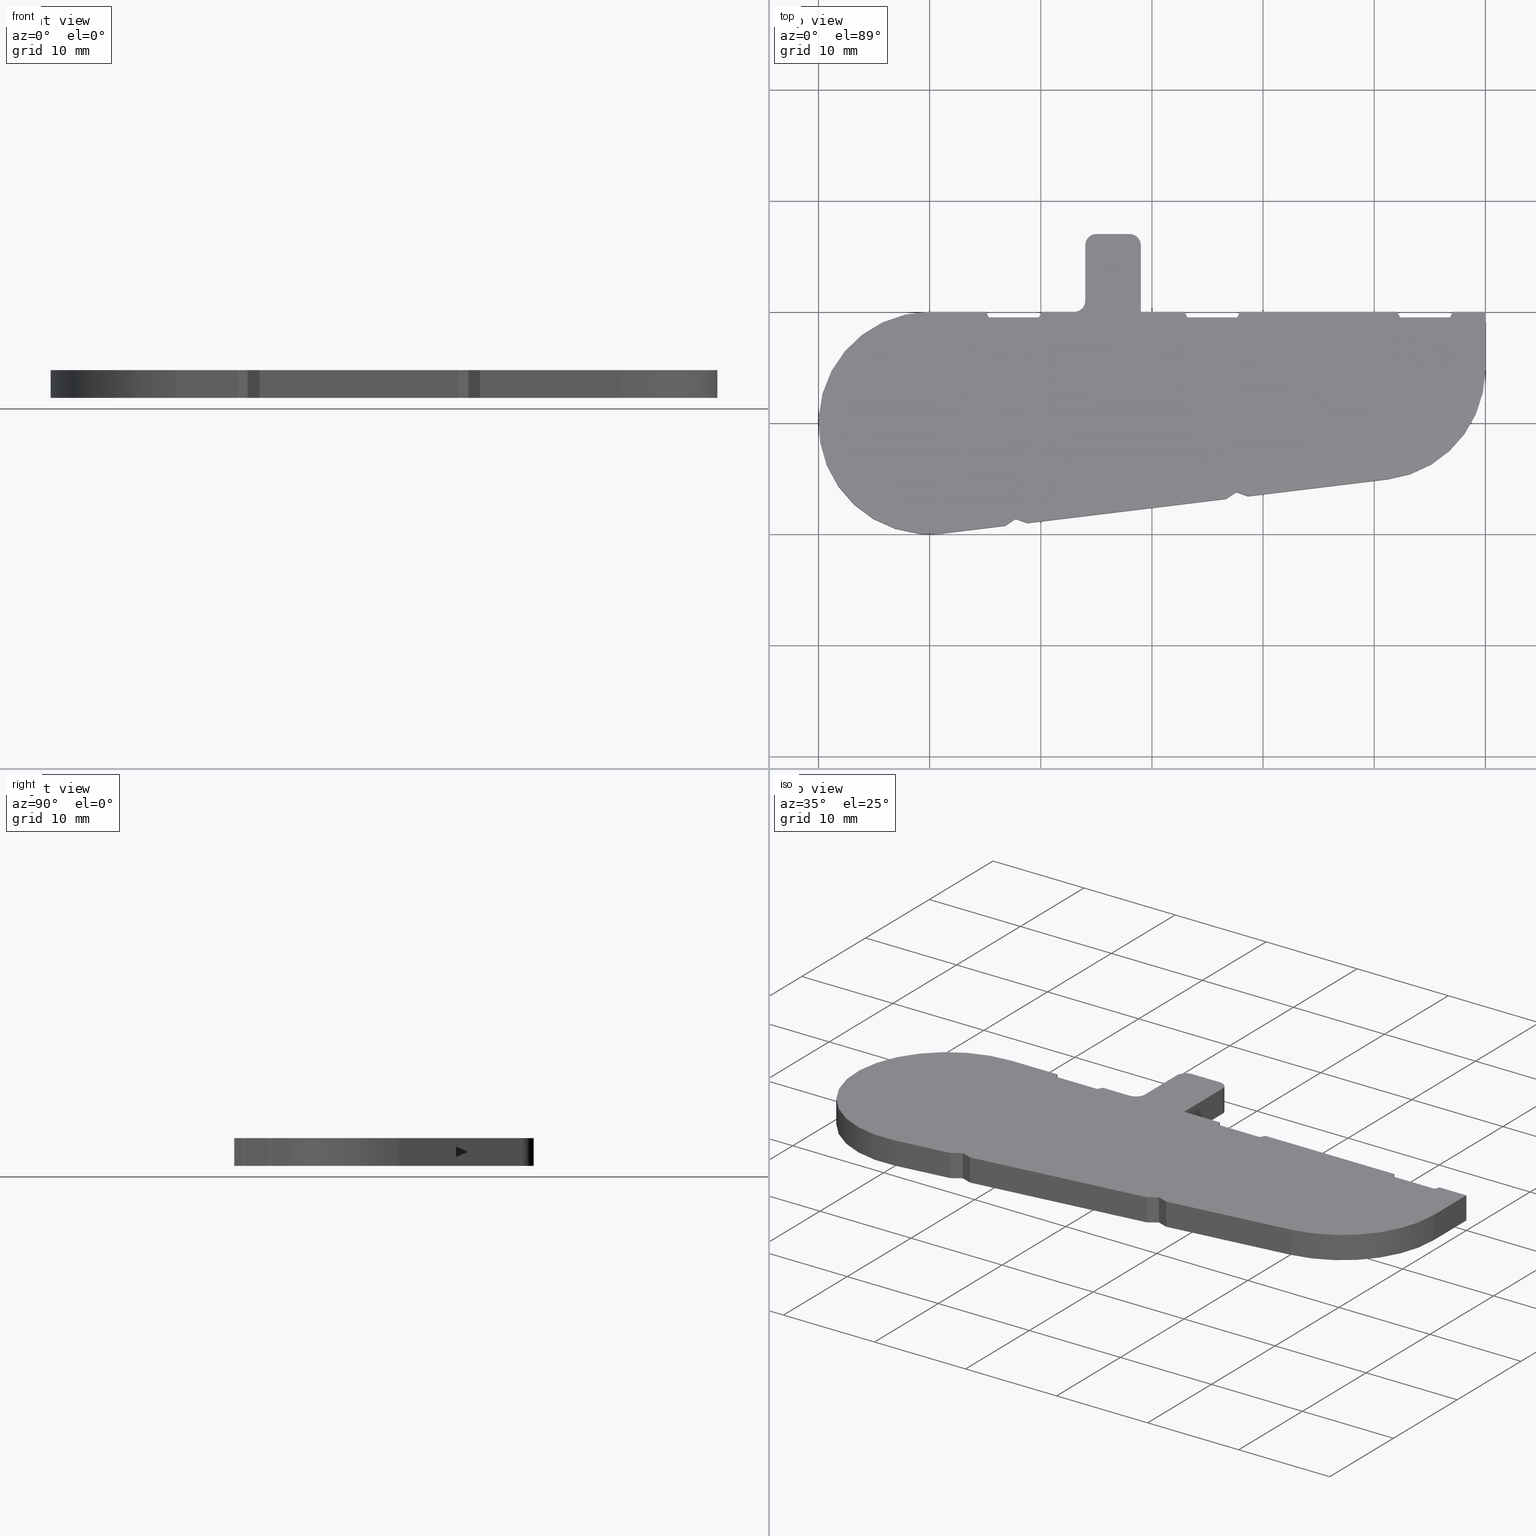
[diagram: canonical four-view strip — front | top / right | iso, engineering-drawing reading convention]
A machine part, canonical four-view strip (front | top / right | iso — engineering-drawing reading convention). The complete STEP part file that produces these views, byte-faithful:
ISO-10303-21;
HEADER;
/****************************************************************
 * Generated by software with PDE/Lib inside                    *
 * PDElib Version v4.4, created Mon 02/23/2004                  *
 * International Technegroup Inc. (www.iti-oh.com)              *
 ****************************************************************/
FILE_DESCRIPTION(('STEP AP203'),'2;1');
FILE_NAME('70CO00011.stp','2011-06-06T18:24:14',(''),(''),'2009.3.110','THINKDESIGN','');
FILE_SCHEMA(('CONFIG_CONTROL_DESIGN'));
ENDSEC;
DATA;
#2=CARTESIAN_POINT('',(46.824999561297545,9.500002191171006,0.0));
#3=DIRECTION('',(-0.000000046794917,0.999999999999999,0.0));
#4=DIRECTION('',(-0.999999999999999,-0.000000046794917,0.0));
#5=AXIS2_PLACEMENT_3D('',#2,#3,#4);
#6=PLANE('',#5);
#7=CARTESIAN_POINT('',(46.824999561297545,9.500002191171006,0.0));
#8=VERTEX_POINT('',#7);
#9=CARTESIAN_POINT('',(42.324999561297545,9.500001980593879,0.0));
#10=VERTEX_POINT('',#9);
#11=CARTESIAN_POINT('',(46.824999561297545,9.500002191171006,0.0));
#12=DIRECTION('',(-0.999999999999999,-0.000000046794917,0.0));
#13=VECTOR('',#12,4.500000000000004);
#14=LINE('',#11,#13);
#15=EDGE_CURVE('',#8,#10,#14,.T.);
#16=ORIENTED_EDGE('',*,*,#15,.T.);
#17=CARTESIAN_POINT('',(42.324999561297545,9.500001980593879,2.500000000000000));
#18=VERTEX_POINT('',#17);
#19=CARTESIAN_POINT('',(42.324999561297545,9.500001980593879,0.0));
#20=DIRECTION('',(0.0,0.0,1.0));
#21=VECTOR('',#20,2.500000000000000);
#22=LINE('',#19,#21);
#23=EDGE_CURVE('',#10,#18,#22,.T.);
#24=ORIENTED_EDGE('',*,*,#23,.T.);
#25=CARTESIAN_POINT('',(46.824999561297545,9.500002191171006,2.500000000000000));
#26=VERTEX_POINT('',#25);
#27=CARTESIAN_POINT('',(46.824999561297545,9.500002191171006,2.500000000000000));
#28=DIRECTION('',(-0.999999999999999,-0.000000046794917,0.0));
#29=VECTOR('',#28,4.500000000000004);
#30=LINE('',#27,#29);
#31=EDGE_CURVE('',#26,#18,#30,.T.);
#32=ORIENTED_EDGE('',*,*,#31,.F.);
#33=CARTESIAN_POINT('',(46.824999561297545,9.500002191171006,0.0));
#34=DIRECTION('',(0.0,0.0,1.0));
#35=VECTOR('',#34,2.500000000000000);
#36=LINE('',#33,#35);
#37=EDGE_CURVE('',#8,#26,#36,.T.);
#38=ORIENTED_EDGE('',*,*,#37,.F.);
#39=EDGE_LOOP('',(#16,#24,#32,#38));
#40=FACE_OUTER_BOUND('',#39,.T.);
#41=ADVANCED_FACE('',(#40),#6,.T.);
#42=CARTESIAN_POINT('',(42.324999561297545,9.500001980593879,0.0));
#43=DIRECTION('',(0.894427170072899,0.447213637353989,0.0));
#44=DIRECTION('',(-0.447213637353989,0.894427170072899,0.0));
#45=AXIS2_PLACEMENT_3D('',#42,#43,#44);
#46=PLANE('',#45);
#47=CARTESIAN_POINT('',(42.074999537900112,10.000001968895958,0.0));
#48=VERTEX_POINT('',#47);
#49=CARTESIAN_POINT('',(42.324999561297545,9.500001980593879,0.0));
#50=DIRECTION('',(-0.447213637353989,0.894427170072899,0.0));
#51=VECTOR('',#50,0.559016994375660);
#52=LINE('',#49,#51);
#53=EDGE_CURVE('',#10,#48,#52,.T.);
#54=ORIENTED_EDGE('',*,*,#53,.T.);
#55=CARTESIAN_POINT('',(42.074999537900112,10.000001968895958,2.500000000000000));
#56=VERTEX_POINT('',#55);
#57=CARTESIAN_POINT('',(42.074999537900112,10.000001968895958,0.0));
#58=DIRECTION('',(0.0,0.0,1.0));
#59=VECTOR('',#58,2.500000000000000);
#60=LINE('',#57,#59);
#61=EDGE_CURVE('',#48,#56,#60,.T.);
#62=ORIENTED_EDGE('',*,*,#61,.T.);
#63=CARTESIAN_POINT('',(42.324999561297545,9.500001980593879,2.500000000000000));
#64=DIRECTION('',(-0.447213637353989,0.894427170072899,0.0));
#65=VECTOR('',#64,0.559016994375660);
#66=LINE('',#63,#65);
#67=EDGE_CURVE('',#18,#56,#66,.T.);
#68=ORIENTED_EDGE('',*,*,#67,.F.);
#69=ORIENTED_EDGE('',*,*,#23,.F.);
#70=EDGE_LOOP('',(#54,#62,#68,#69));
#71=FACE_OUTER_BOUND('',#70,.T.);
#72=ADVANCED_FACE('',(#71),#46,.T.);
#73=CARTESIAN_POINT('',(42.074999537900112,10.000001968895958,0.0));
#74=DIRECTION('',(-0.000000046794949,0.999999999999999,0.0));
#75=DIRECTION('',(-0.999999999999999,-0.000000046794949,0.0));
#76=AXIS2_PLACEMENT_3D('',#73,#74,#75);
#77=PLANE('',#76);
#78=CARTESIAN_POINT('',(27.924999526201645,10.000001306747436,0.0));
#79=VERTEX_POINT('',#78);
#80=CARTESIAN_POINT('',(42.074999537900112,10.000001968895930,0.0));
#81=DIRECTION('',(-0.999999999999999,-0.000000046794947,0.0));
#82=VECTOR('',#81,14.150000011698483);
#83=LINE('',#80,#82);
#84=EDGE_CURVE('',#48,#79,#83,.T.);
#85=ORIENTED_EDGE('',*,*,#84,.T.);
#86=CARTESIAN_POINT('',(27.924999526201645,10.000001306747436,2.500000000000000));
#87=VERTEX_POINT('',#86);
#88=CARTESIAN_POINT('',(27.924999526201645,10.000001306747436,0.0));
#89=DIRECTION('',(0.0,0.0,1.0));
#90=VECTOR('',#89,2.500000000000000);
#91=LINE('',#88,#90);
#92=EDGE_CURVE('',#79,#87,#91,.T.);
#93=ORIENTED_EDGE('',*,*,#92,.T.);
#94=CARTESIAN_POINT('',(42.074999537900112,10.000001968895930,2.500000000000000));
#95=DIRECTION('',(-0.999999999999999,-0.000000046794947,0.0));
#96=VECTOR('',#95,14.150000011698483);
#97=LINE('',#94,#96);
#98=EDGE_CURVE('',#56,#87,#97,.T.);
#99=ORIENTED_EDGE('',*,*,#98,.F.);
#100=ORIENTED_EDGE('',*,*,#61,.F.);
#101=EDGE_LOOP('',(#85,#93,#99,#100));
#102=FACE_OUTER_BOUND('',#101,.T.);
#103=ADVANCED_FACE('',(#102),#77,.T.);
#104=CARTESIAN_POINT('',(27.924999526201645,10.000001306747436,0.0));
#105=DIRECTION('',(-0.894427211927175,0.447213553645438,0.0));
#106=DIRECTION('',(-0.447213553645438,-0.894427211927175,0.0));
#107=AXIS2_PLACEMENT_3D('',#104,#105,#106);
#108=PLANE('',#107);
#109=CARTESIAN_POINT('',(27.674999549599079,9.500001295048833,0.0));
#110=VERTEX_POINT('',#109);
#111=CARTESIAN_POINT('',(27.924999526201645,10.000001306747436,0.0));
#112=DIRECTION('',(-0.447213553645438,-0.894427211927175,0.0));
#113=VECTOR('',#112,0.559016994374846);
#114=LINE('',#111,#113);
#115=EDGE_CURVE('',#79,#110,#114,.T.);
#116=ORIENTED_EDGE('',*,*,#115,.T.);
#117=CARTESIAN_POINT('',(27.674999549599079,9.500001295048833,2.500000000000000));
#118=VERTEX_POINT('',#117);
#119=CARTESIAN_POINT('',(27.674999549599079,9.500001295048833,0.0));
#120=DIRECTION('',(0.0,0.0,1.0));
#121=VECTOR('',#120,2.500000000000000);
#122=LINE('',#119,#121);
#123=EDGE_CURVE('',#110,#118,#122,.T.);
#124=ORIENTED_EDGE('',*,*,#123,.T.);
#125=CARTESIAN_POINT('',(27.924999526201645,10.000001306747436,2.500000000000000));
#126=DIRECTION('',(-0.447213553645438,-0.894427211927175,0.0));
#127=VECTOR('',#126,0.559016994374846);
#128=LINE('',#125,#127);
#129=EDGE_CURVE('',#87,#118,#128,.T.);
#130=ORIENTED_EDGE('',*,*,#129,.F.);
#131=ORIENTED_EDGE('',*,*,#92,.F.);
#132=EDGE_LOOP('',(#116,#124,#130,#131));
#133=FACE_OUTER_BOUND('',#132,.T.);
#134=ADVANCED_FACE('',(#133),#108,.T.);
#135=CARTESIAN_POINT('',(27.674999549599079,9.500001295048833,0.0));
#136=DIRECTION('',(-0.000000046794917,0.999999999999999,0.0));
#137=DIRECTION('',(-0.999999999999999,-0.000000046794917,0.0));
#138=AXIS2_PLACEMENT_3D('',#135,#136,#137);
#139=PLANE('',#138);
#140=CARTESIAN_POINT('',(23.174999549599079,9.500001084471705,0.0));
#141=VERTEX_POINT('',#140);
#142=CARTESIAN_POINT('',(27.674999549599079,9.500001295048833,0.0));
#143=DIRECTION('',(-0.999999999999999,-0.000000046794917,0.0));
#144=VECTOR('',#143,4.500000000000004);
#145=LINE('',#142,#144);
#146=EDGE_CURVE('',#110,#141,#145,.T.);
#147=ORIENTED_EDGE('',*,*,#146,.T.);
#148=CARTESIAN_POINT('',(23.174999549599079,9.500001084471705,2.500000000000000));
#149=VERTEX_POINT('',#148);
#150=CARTESIAN_POINT('',(23.174999549599079,9.500001084471705,0.0));
#151=DIRECTION('',(0.0,0.0,1.0));
#152=VECTOR('',#151,2.500000000000000);
#153=LINE('',#150,#152);
#154=EDGE_CURVE('',#141,#149,#153,.T.);
#155=ORIENTED_EDGE('',*,*,#154,.T.);
#156=CARTESIAN_POINT('',(27.674999549599079,9.500001295048833,2.500000000000000));
#157=DIRECTION('',(-0.999999999999999,-0.000000046794917,0.0));
#158=VECTOR('',#157,4.500000000000004);
#159=LINE('',#156,#158);
#160=EDGE_CURVE('',#118,#149,#159,.T.);
#161=ORIENTED_EDGE('',*,*,#160,.F.);
#162=ORIENTED_EDGE('',*,*,#123,.F.);
#163=EDGE_LOOP('',(#147,#155,#161,#162));
#164=FACE_OUTER_BOUND('',#163,.T.);
#165=ADVANCED_FACE('',(#164),#139,.T.);
#166=CARTESIAN_POINT('',(23.174999549599079,9.500001084471705,0.0));
#167=DIRECTION('',(0.894427170072574,0.447213637354640,0.0));
#168=DIRECTION('',(-0.447213637354640,0.894427170072574,0.0));
#169=AXIS2_PLACEMENT_3D('',#166,#167,#168);
#170=PLANE('',#169);
#171=CARTESIAN_POINT('',(22.924999526201645,10.000001072772875,0.0));
#172=VERTEX_POINT('',#171);
#173=CARTESIAN_POINT('',(23.174999549599079,9.500001084471705,0.0));
#174=DIRECTION('',(-0.447213637354640,0.894427170072574,0.0));
#175=VECTOR('',#174,0.559016994374846);
#176=LINE('',#173,#175);
#177=EDGE_CURVE('',#141,#172,#176,.T.);
#178=ORIENTED_EDGE('',*,*,#177,.T.);
#179=CARTESIAN_POINT('',(22.924999526201645,10.000001072772875,2.500000000000000));
#180=VERTEX_POINT('',#179);
#181=CARTESIAN_POINT('',(22.924999526201645,10.000001072772875,0.0));
#182=DIRECTION('',(0.0,0.0,1.0));
#183=VECTOR('',#182,2.500000000000000);
#184=LINE('',#181,#183);
#185=EDGE_CURVE('',#172,#180,#184,.T.);
#186=ORIENTED_EDGE('',*,*,#185,.T.);
#187=CARTESIAN_POINT('',(23.174999549599079,9.500001084471705,2.500000000000000));
#188=DIRECTION('',(-0.447213637354640,0.894427170072574,0.0));
#189=VECTOR('',#188,0.559016994374846);
#190=LINE('',#187,#189);
#191=EDGE_CURVE('',#149,#180,#190,.T.);
#192=ORIENTED_EDGE('',*,*,#191,.F.);
#193=ORIENTED_EDGE('',*,*,#154,.F.);
#194=EDGE_LOOP('',(#178,#186,#192,#193));
#195=FACE_OUTER_BOUND('',#194,.T.);
#196=ADVANCED_FACE('',(#195),#170,.T.);
#197=CARTESIAN_POINT('',(22.924999526201645,10.000001072772875,0.0));
#198=DIRECTION('',(-0.000000046794893,0.999999999999999,0.0));
#199=DIRECTION('',(-0.999999999999999,-0.000000046794893,0.0));
#200=AXIS2_PLACEMENT_3D('',#197,#198,#199);
#201=PLANE('',#200);
#202=CARTESIAN_POINT('',(18.999999532050879,10.000000889102921,0.0));
#203=VERTEX_POINT('',#202);
#204=CARTESIAN_POINT('',(22.924999526201645,10.000001072772875,0.0));
#205=DIRECTION('',(-0.999999999999999,-0.000000046794893,0.0));
#206=VECTOR('',#205,3.924999994150771);
#207=LINE('',#204,#206);
#208=EDGE_CURVE('',#172,#203,#207,.T.);
#209=ORIENTED_EDGE('',*,*,#208,.T.);
#210=CARTESIAN_POINT('',(18.999999532050879,10.000000889102921,2.500000000000000));
#211=VERTEX_POINT('',#210);
#212=CARTESIAN_POINT('',(18.999999532050879,10.000000889102921,0.0));
#213=DIRECTION('',(0.0,0.0,1.0));
#214=VECTOR('',#213,2.500000000000000);
#215=LINE('',#212,#214);
#216=EDGE_CURVE('',#203,#211,#215,.T.);
#217=ORIENTED_EDGE('',*,*,#216,.T.);
#218=CARTESIAN_POINT('',(22.924999526201645,10.000001072772875,2.500000000000000));
#219=DIRECTION('',(-0.999999999999999,-0.000000046794893,0.0));
#220=VECTOR('',#219,3.924999994150771);
#221=LINE('',#218,#220);
#222=EDGE_CURVE('',#180,#211,#221,.T.);
#223=ORIENTED_EDGE('',*,*,#222,.F.);
#224=ORIENTED_EDGE('',*,*,#185,.F.);
#225=EDGE_LOOP('',(#209,#217,#223,#224));
#226=FACE_OUTER_BOUND('',#225,.T.);
#227=ADVANCED_FACE('',(#226),#201,.T.);
#228=CARTESIAN_POINT('',(18.999999532050879,10.000000889102921,0.0));
#229=DIRECTION('',(0.999999999999999,0.000000046794867,0.0));
#230=DIRECTION('',(-0.000000046794867,0.999999999999999,0.0));
#231=AXIS2_PLACEMENT_3D('',#228,#229,#230);
#232=PLANE('',#231);
#233=CARTESIAN_POINT('',(18.999999251281679,16.000000889102921,0.0));
#234=VERTEX_POINT('',#233);
#235=CARTESIAN_POINT('',(18.999999532050879,10.000000889102921,0.0));
#236=DIRECTION('',(-0.000000046794867,0.999999999999999,0.0));
#237=VECTOR('',#236,6.000000000000006);
#238=LINE('',#235,#237);
#239=EDGE_CURVE('',#203,#234,#238,.T.);
#240=ORIENTED_EDGE('',*,*,#239,.T.);
#241=CARTESIAN_POINT('',(18.999999251281679,16.000000889102921,2.500000000000000));
#242=VERTEX_POINT('',#241);
#243=CARTESIAN_POINT('',(18.999999251281679,16.000000889102921,0.0));
#244=DIRECTION('',(0.0,0.0,1.0));
#245=VECTOR('',#244,2.500000000000000);
#246=LINE('',#243,#245);
#247=EDGE_CURVE('',#234,#242,#246,.T.);
#248=ORIENTED_EDGE('',*,*,#247,.T.);
#249=CARTESIAN_POINT('',(18.999999532050879,10.000000889102921,2.500000000000000));
#250=DIRECTION('',(-0.000000046794867,0.999999999999999,0.0));
#251=VECTOR('',#250,6.000000000000006);
#252=LINE('',#249,#251);
#253=EDGE_CURVE('',#211,#242,#252,.T.);
#254=ORIENTED_EDGE('',*,*,#253,.F.);
#255=ORIENTED_EDGE('',*,*,#216,.F.);
#256=EDGE_LOOP('',(#240,#248,#254,#255));
#257=FACE_OUTER_BOUND('',#256,.T.);
#258=ADVANCED_FACE('',(#257),#232,.T.);
#259=CARTESIAN_POINT('',(17.999999251281679,16.000000842308054,0.0));
#260=DIRECTION('',(0.0,0.0,1.0));
#261=DIRECTION('',(1.0,0.0,0.0));
#262=AXIS2_PLACEMENT_3D('',#259,#260,#261);
#263=CYLINDRICAL_SURFACE('',#262,1.0);
#264=CARTESIAN_POINT('',(17.999999204486585,17.000000842308054,0.0));
#265=VERTEX_POINT('',#264);
#266=CARTESIAN_POINT('',(17.999999251281679,16.000000842308054,0.0));
#267=DIRECTION('',(0.0,0.0,1.0));
#268=DIRECTION('',(1.0,0.0,0.0));
#269=AXIS2_PLACEMENT_3D('',#266,#267,#268);
#270=CIRCLE('',#269,1.0);
#271=EDGE_CURVE('',#234,#265,#270,.T.);
#272=ORIENTED_EDGE('',*,*,#271,.T.);
#273=CARTESIAN_POINT('',(17.999999204486585,17.000000842308054,2.500000000000000));
#274=VERTEX_POINT('',#273);
#275=CARTESIAN_POINT('',(17.999999204486585,17.000000842308054,0.0));
#276=DIRECTION('',(0.0,0.0,1.0));
#277=VECTOR('',#276,2.500000000000000);
#278=LINE('',#275,#277);
#279=EDGE_CURVE('',#265,#274,#278,.T.);
#280=ORIENTED_EDGE('',*,*,#279,.T.);
#281=CARTESIAN_POINT('',(17.999999251281679,16.000000842308054,2.500000000000000));
#282=DIRECTION('',(0.0,0.0,1.0));
#283=DIRECTION('',(1.0,0.0,0.0));
#284=AXIS2_PLACEMENT_3D('',#281,#282,#283);
#285=CIRCLE('',#284,1.0);
#286=EDGE_CURVE('',#242,#274,#285,.T.);
#287=ORIENTED_EDGE('',*,*,#286,.F.);
#288=ORIENTED_EDGE('',*,*,#247,.F.);
#289=EDGE_LOOP('',(#272,#280,#287,#288));
#290=FACE_OUTER_BOUND('',#289,.T.);
#291=ADVANCED_FACE('',(#290),#263,.T.);
#292=CARTESIAN_POINT('',(17.999999204486585,17.000000842308054,0.0));
#293=DIRECTION('',(-0.000000046794867,0.999999999999999,0.0));
#294=DIRECTION('',(-0.999999999999999,-0.000000046794867,0.0));
#295=AXIS2_PLACEMENT_3D('',#292,#293,#294);
#296=PLANE('',#295);
#297=CARTESIAN_POINT('',(14.999999204486585,17.000000701923454,0.0));
#298=VERTEX_POINT('',#297);
#299=CARTESIAN_POINT('',(17.999999204486585,17.000000842308054,0.0));
#300=DIRECTION('',(-0.999999999999999,-0.000000046794867,0.0));
#301=VECTOR('',#300,3.000000000000003);
#302=LINE('',#299,#301);
#303=EDGE_CURVE('',#265,#298,#302,.T.);
#304=ORIENTED_EDGE('',*,*,#303,.T.);
#305=CARTESIAN_POINT('',(14.999999204486585,17.000000701923454,2.500000000000000));
#306=VERTEX_POINT('',#305);
#307=CARTESIAN_POINT('',(14.999999204486585,17.000000701923454,0.0));
#308=DIRECTION('',(0.0,0.0,1.0));
#309=VECTOR('',#308,2.500000000000000);
#310=LINE('',#307,#309);
#311=EDGE_CURVE('',#298,#306,#310,.T.);
#312=ORIENTED_EDGE('',*,*,#311,.T.);
#313=CARTESIAN_POINT('',(17.999999204486585,17.000000842308054,2.500000000000000));
#314=DIRECTION('',(-0.999999999999999,-0.000000046794867,0.0));
#315=VECTOR('',#314,3.000000000000003);
#316=LINE('',#313,#315);
#317=EDGE_CURVE('',#274,#306,#316,.T.);
#318=ORIENTED_EDGE('',*,*,#317,.F.);
#319=ORIENTED_EDGE('',*,*,#279,.F.);
#320=EDGE_LOOP('',(#304,#312,#318,#319));
#321=FACE_OUTER_BOUND('',#320,.T.);
#322=ADVANCED_FACE('',(#321),#296,.T.);
#323=CARTESIAN_POINT('',(14.999999251281679,16.000000701923454,0.0));
#324=DIRECTION('',(0.0,0.0,1.0));
#325=DIRECTION('',(1.0,0.0,0.0));
#326=AXIS2_PLACEMENT_3D('',#323,#324,#325);
#327=CYLINDRICAL_SURFACE('',#326,1.0);
#328=CARTESIAN_POINT('',(13.999999251281679,16.000000655128588,0.0));
#329=VERTEX_POINT('',#328);
#330=CARTESIAN_POINT('',(14.999999251281679,16.000000701923454,0.0));
#331=DIRECTION('',(0.0,0.0,1.0));
#332=DIRECTION('',(1.0,0.0,0.0));
#333=AXIS2_PLACEMENT_3D('',#330,#331,#332);
#334=CIRCLE('',#333,1.0);
#335=EDGE_CURVE('',#298,#329,#334,.T.);
#336=ORIENTED_EDGE('',*,*,#335,.T.);
#337=CARTESIAN_POINT('',(13.999999251281679,16.000000655128588,2.500000000000000));
#338=VERTEX_POINT('',#337);
#339=CARTESIAN_POINT('',(13.999999251281679,16.000000655128588,0.0));
#340=DIRECTION('',(0.0,0.0,1.0));
#341=VECTOR('',#340,2.500000000000000);
#342=LINE('',#339,#341);
#343=EDGE_CURVE('',#329,#338,#342,.T.);
#344=ORIENTED_EDGE('',*,*,#343,.T.);
#345=CARTESIAN_POINT('',(14.999999251281679,16.000000701923454,2.500000000000000));
#346=DIRECTION('',(0.0,0.0,1.0));
#347=DIRECTION('',(1.0,0.0,0.0));
#348=AXIS2_PLACEMENT_3D('',#345,#346,#347);
#349=CIRCLE('',#348,1.0);
#350=EDGE_CURVE('',#306,#338,#349,.T.);
#351=ORIENTED_EDGE('',*,*,#350,.F.);
#352=ORIENTED_EDGE('',*,*,#311,.F.);
#353=EDGE_LOOP('',(#336,#344,#351,#352));
#354=FACE_OUTER_BOUND('',#353,.T.);
#355=ADVANCED_FACE('',(#354),#327,.T.);
#356=CARTESIAN_POINT('',(13.999999251281679,16.000000655128588,0.0));
#357=DIRECTION('',(-0.999999999999999,-0.000000046794867,0.0));
#358=DIRECTION('',(0.000000046794867,-0.999999999999999,0.0));
#359=AXIS2_PLACEMENT_3D('',#356,#357,#358);
#360=PLANE('',#359);
#361=CARTESIAN_POINT('',(13.999999485256012,11.000000655128588,0.0));
#362=VERTEX_POINT('',#361);
#363=CARTESIAN_POINT('',(13.999999251281679,16.000000655128588,0.0));
#364=DIRECTION('',(0.000000046794867,-0.999999999999999,0.0));
#365=VECTOR('',#364,5.000000000000005);
#366=LINE('',#363,#365);
#367=EDGE_CURVE('',#329,#362,#366,.T.);
#368=ORIENTED_EDGE('',*,*,#367,.T.);
#369=CARTESIAN_POINT('',(13.999999485256012,11.000000655128588,2.500000000000000));
#370=VERTEX_POINT('',#369);
#371=CARTESIAN_POINT('',(13.999999485256012,11.000000655128588,0.0));
#372=DIRECTION('',(0.0,0.0,1.0));
#373=VECTOR('',#372,2.500000000000000);
#374=LINE('',#371,#373);
#375=EDGE_CURVE('',#362,#370,#374,.T.);
#376=ORIENTED_EDGE('',*,*,#375,.T.);
#377=CARTESIAN_POINT('',(13.999999251281679,16.000000655128588,2.500000000000000));
#378=DIRECTION('',(0.000000046794867,-0.999999999999999,0.0));
#379=VECTOR('',#378,5.000000000000005);
#380=LINE('',#377,#379);
#381=EDGE_CURVE('',#338,#370,#380,.T.);
#382=ORIENTED_EDGE('',*,*,#381,.F.);
#383=ORIENTED_EDGE('',*,*,#343,.F.);
#384=EDGE_LOOP('',(#368,#376,#382,#383));
#385=FACE_OUTER_BOUND('',#384,.T.);
#386=ADVANCED_FACE('',(#385),#360,.T.);
#387=CARTESIAN_POINT('',(12.999999485256012,11.000000608333721,0.0));
#388=DIRECTION('',(0.0,0.0,-1.0));
#389=DIRECTION('',(0.999999999999999,0.000000046794867,0.0));
#390=AXIS2_PLACEMENT_3D('',#387,#388,#389);
#391=CYLINDRICAL_SURFACE('',#390,1.0);
#392=CARTESIAN_POINT('',(12.999999532050879,10.000000608333721,0.0));
#393=VERTEX_POINT('',#392);
#394=CARTESIAN_POINT('',(12.999999485256012,11.000000608333721,0.0));
#395=DIRECTION('',(0.0,0.0,-1.0));
#396=DIRECTION('',(1.0,0.0,0.0));
#397=AXIS2_PLACEMENT_3D('',#394,#395,#396);
#398=CIRCLE('',#397,1.0);
#399=EDGE_CURVE('',#362,#393,#398,.T.);
#400=ORIENTED_EDGE('',*,*,#399,.T.);
#401=CARTESIAN_POINT('',(12.999999532050879,10.000000608333721,2.500000000000000));
#402=VERTEX_POINT('',#401);
#403=CARTESIAN_POINT('',(12.999999532050879,10.000000608333721,0.0));
#404=DIRECTION('',(0.0,0.0,1.0));
#405=VECTOR('',#404,2.500000000000000);
#406=LINE('',#403,#405);
#407=EDGE_CURVE('',#393,#402,#406,.T.);
#408=ORIENTED_EDGE('',*,*,#407,.T.);
#409=CARTESIAN_POINT('',(12.999999485256012,11.000000608333721,2.500000000000000));
#410=DIRECTION('',(0.0,0.0,-1.0));
#411=DIRECTION('',(1.0,0.0,0.0));
#412=AXIS2_PLACEMENT_3D('',#409,#410,#411);
#413=CIRCLE('',#412,1.0);
#414=EDGE_CURVE('',#370,#402,#413,.T.);
#415=ORIENTED_EDGE('',*,*,#414,.F.);
#416=ORIENTED_EDGE('',*,*,#375,.F.);
#417=EDGE_LOOP('',(#400,#408,#415,#416));
#418=FACE_OUTER_BOUND('',#417,.T.);
#419=ADVANCED_FACE('',(#418),#391,.F.);
#420=CARTESIAN_POINT('',(12.999999532050879,10.000000608333721,0.0));
#421=DIRECTION('',(-0.000000046794902,0.999999999999999,0.0));
#422=DIRECTION('',(-0.999999999999999,-0.000000046794902,0.0));
#423=AXIS2_PLACEMENT_3D('',#420,#421,#422);
#424=PLANE('',#423);
#425=CARTESIAN_POINT('',(10.074999537900339,10.000000471458634,0.0));
#426=VERTEX_POINT('',#425);
#427=CARTESIAN_POINT('',(12.999999532050879,10.000000608333721,0.0));
#428=DIRECTION('',(-0.999999999999999,-0.000000046794902,0.0));
#429=VECTOR('',#428,2.924999994150543);
#430=LINE('',#427,#429);
#431=EDGE_CURVE('',#393,#426,#430,.T.);
#432=ORIENTED_EDGE('',*,*,#431,.T.);
#433=CARTESIAN_POINT('',(10.074999537900339,10.000000471458634,2.500000000000000));
#434=VERTEX_POINT('',#433);
#435=CARTESIAN_POINT('',(10.074999537900339,10.000000471458634,0.0));
#436=DIRECTION('',(0.0,0.0,1.0));
#437=VECTOR('',#436,2.500000000000000);
#438=LINE('',#435,#437);
#439=EDGE_CURVE('',#426,#434,#438,.T.);
#440=ORIENTED_EDGE('',*,*,#439,.T.);
#441=CARTESIAN_POINT('',(12.999999532050879,10.000000608333721,2.500000000000000));
#442=DIRECTION('',(-0.999999999999999,-0.000000046794902,0.0));
#443=VECTOR('',#442,2.924999994150543);
#444=LINE('',#441,#443);
#445=EDGE_CURVE('',#402,#434,#444,.T.);
#446=ORIENTED_EDGE('',*,*,#445,.F.);
#447=ORIENTED_EDGE('',*,*,#407,.F.);
#448=EDGE_LOOP('',(#432,#440,#446,#447));
#449=FACE_OUTER_BOUND('',#448,.T.);
#450=ADVANCED_FACE('',(#449),#424,.T.);
#451=CARTESIAN_POINT('',(10.074999537900339,10.000000471458634,0.0));
#452=DIRECTION('',(-0.894427211927256,0.447213553645275,0.0));
#453=DIRECTION('',(-0.447213553645275,-0.894427211927256,0.0));
#454=AXIS2_PLACEMENT_3D('',#451,#452,#453);
#455=PLANE('',#454);
#456=CARTESIAN_POINT('',(9.824999561297773,9.500000459759804,0.0));
#457=VERTEX_POINT('',#456);
#458=CARTESIAN_POINT('',(10.074999537900339,10.000000471458634,0.0));
#459=DIRECTION('',(-0.447213553645275,-0.894427211927256,0.0));
#460=VECTOR('',#459,0.559016994375050);
#461=LINE('',#458,#460);
#462=EDGE_CURVE('',#426,#457,#461,.T.);
#463=ORIENTED_EDGE('',*,*,#462,.T.);
#464=CARTESIAN_POINT('',(9.824999561297773,9.500000459759804,2.500000000000000));
#465=VERTEX_POINT('',#464);
#466=CARTESIAN_POINT('',(9.824999561297773,9.500000459759804,0.0));
#467=DIRECTION('',(0.0,0.0,1.0));
#468=VECTOR('',#467,2.500000000000000);
#469=LINE('',#466,#468);
#470=EDGE_CURVE('',#457,#465,#469,.T.);
#471=ORIENTED_EDGE('',*,*,#470,.T.);
#472=CARTESIAN_POINT('',(10.074999537900339,10.000000471458634,2.500000000000000));
#473=DIRECTION('',(-0.447213553645275,-0.894427211927256,0.0));
#474=VECTOR('',#473,0.559016994375050);
#475=LINE('',#472,#474);
#476=EDGE_CURVE('',#434,#465,#475,.T.);
#477=ORIENTED_EDGE('',*,*,#476,.F.);
#478=ORIENTED_EDGE('',*,*,#439,.F.);
#479=EDGE_LOOP('',(#463,#471,#477,#478));
#480=FACE_OUTER_BOUND('',#479,.T.);
#481=ADVANCED_FACE('',(#480),#455,.T.);
#482=CARTESIAN_POINT('',(9.824999561297773,9.500000459759804,0.0));
#483=DIRECTION('',(-0.000000046794867,0.999999999999999,0.0));
#484=DIRECTION('',(-0.999999999999999,-0.000000046794867,0.0));
#485=AXIS2_PLACEMENT_3D('',#482,#483,#484);
#486=PLANE('',#485);
#487=CARTESIAN_POINT('',(5.324999561297773,9.500000249182904,0.0));
#488=VERTEX_POINT('',#487);
#489=CARTESIAN_POINT('',(9.824999561297773,9.500000459759804,0.0));
#490=DIRECTION('',(-0.999999999999999,-0.000000046794867,0.0));
#491=VECTOR('',#490,4.500000000000004);
#492=LINE('',#489,#491);
#493=EDGE_CURVE('',#457,#488,#492,.T.);
#494=ORIENTED_EDGE('',*,*,#493,.T.);
#495=CARTESIAN_POINT('',(5.324999561297773,9.500000249182904,2.500000000000000));
#496=VERTEX_POINT('',#495);
#497=CARTESIAN_POINT('',(5.324999561297773,9.500000249182904,0.0));
#498=DIRECTION('',(0.0,0.0,1.0));
#499=VECTOR('',#498,2.500000000000000);
#500=LINE('',#497,#499);
#501=EDGE_CURVE('',#488,#496,#500,.T.);
#502=ORIENTED_EDGE('',*,*,#501,.T.);
#503=CARTESIAN_POINT('',(9.824999561297773,9.500000459759804,2.500000000000000));
#504=DIRECTION('',(-0.999999999999999,-0.000000046794867,0.0));
#505=VECTOR('',#504,4.500000000000004);
#506=LINE('',#503,#505);
#507=EDGE_CURVE('',#465,#496,#506,.T.);
#508=ORIENTED_EDGE('',*,*,#507,.F.);
#509=ORIENTED_EDGE('',*,*,#470,.F.);
#510=EDGE_LOOP('',(#494,#502,#508,#509));
#511=FACE_OUTER_BOUND('',#510,.T.);
#512=ADVANCED_FACE('',(#511),#486,.T.);
#513=CARTESIAN_POINT('',(5.324999561297773,9.500000249182904,0.0));
#514=DIRECTION('',(0.894427170072574,0.447213637354640,0.0));
#515=DIRECTION('',(-0.447213637354640,0.894427170072574,0.0));
#516=AXIS2_PLACEMENT_3D('',#513,#514,#515);
#517=PLANE('',#516);
#518=CARTESIAN_POINT('',(5.074999537900339,10.000000237484073,0.0));
#519=VERTEX_POINT('',#518);
#520=CARTESIAN_POINT('',(5.324999561297773,9.500000249182904,0.0));
#521=DIRECTION('',(-0.447213637354640,0.894427170072574,0.0));
#522=VECTOR('',#521,0.559016994374846);
#523=LINE('',#520,#522);
#524=EDGE_CURVE('',#488,#519,#523,.T.);
#525=ORIENTED_EDGE('',*,*,#524,.T.);
#526=CARTESIAN_POINT('',(5.074999537900339,10.000000237484073,2.500000000000000));
#527=VERTEX_POINT('',#526);
#528=CARTESIAN_POINT('',(5.074999537900339,10.000000237484073,0.0));
#529=DIRECTION('',(0.0,0.0,1.0));
#530=VECTOR('',#529,2.500000000000000);
#531=LINE('',#528,#530);
#532=EDGE_CURVE('',#519,#527,#531,.T.);
#533=ORIENTED_EDGE('',*,*,#532,.T.);
#534=CARTESIAN_POINT('',(5.324999561297773,9.500000249182904,2.500000000000000));
#535=DIRECTION('',(-0.447213637354640,0.894427170072574,0.0));
#536=VECTOR('',#535,0.559016994374846);
#537=LINE('',#534,#536);
#538=EDGE_CURVE('',#496,#527,#537,.T.);
#539=ORIENTED_EDGE('',*,*,#538,.F.);
#540=ORIENTED_EDGE('',*,*,#501,.F.);
#541=EDGE_LOOP('',(#525,#533,#539,#540));
#542=FACE_OUTER_BOUND('',#541,.T.);
#543=ADVANCED_FACE('',(#542),#517,.T.);
#544=CARTESIAN_POINT('',(5.074999537900339,10.000000237484073,0.0));
#545=DIRECTION('',(-0.000000046794891,0.999999999999999,0.0));
#546=DIRECTION('',(-0.999999999999999,-0.000000046794891,0.0));
#547=AXIS2_PLACEMENT_3D('',#544,#545,#546);
#548=PLANE('',#547);
#549=CARTESIAN_POINT('',(-0.000000467949107,10.0,0.0));
#550=VERTEX_POINT('',#549);
#551=CARTESIAN_POINT('',(5.074999537900339,10.000000237484073,0.0));
#552=DIRECTION('',(-0.999999999999999,-0.000000046794891,0.0));
#553=VECTOR('',#552,5.075000005849466);
#554=LINE('',#551,#553);
#555=EDGE_CURVE('',#519,#550,#554,.T.);
#556=ORIENTED_EDGE('',*,*,#555,.T.);
#557=CARTESIAN_POINT('',(-0.000000467949107,10.0,2.500000000000000));
#558=VERTEX_POINT('',#557);
#559=CARTESIAN_POINT('',(-0.000000467949107,10.0,0.0));
#560=DIRECTION('',(0.0,0.0,1.0));
#561=VECTOR('',#560,2.500000000000000);
#562=LINE('',#559,#561);
#563=EDGE_CURVE('',#550,#558,#562,.T.);
#564=ORIENTED_EDGE('',*,*,#563,.T.);
#565=CARTESIAN_POINT('',(5.074999537900339,10.000000237484073,2.500000000000000));
#566=DIRECTION('',(-0.999999999999999,-0.000000046794891,0.0));
#567=VECTOR('',#566,5.075000005849466);
#568=LINE('',#565,#567);
#569=EDGE_CURVE('',#527,#558,#568,.T.);
#570=ORIENTED_EDGE('',*,*,#569,.F.);
#571=ORIENTED_EDGE('',*,*,#532,.F.);
#572=EDGE_LOOP('',(#556,#564,#570,#571));
#573=FACE_OUTER_BOUND('',#572,.T.);
#574=ADVANCED_FACE('',(#573),#548,.T.);
#575=CARTESIAN_POINT('',(0.0,0.0,0.0));
#576=DIRECTION('',(0.0,0.0,1.0));
#577=DIRECTION('',(1.0,0.0,0.0));
#578=AXIS2_PLACEMENT_3D('',#575,#576,#577);
#579=CYLINDRICAL_SURFACE('',#578,10.0);
#580=CARTESIAN_POINT('',(1.207414269662650,-9.926839919199665,0.0));
#581=VERTEX_POINT('',#580);
#582=CARTESIAN_POINT('',(0.0,0.0,0.0));
#583=DIRECTION('',(0.0,0.0,1.0));
#584=DIRECTION('',(1.0,0.0,0.0));
#585=AXIS2_PLACEMENT_3D('',#582,#583,#584);
#586=CIRCLE('',#585,10.0);
#587=EDGE_CURVE('',#550,#581,#586,.T.);
#588=ORIENTED_EDGE('',*,*,#587,.T.);
#589=CARTESIAN_POINT('',(1.207414269662650,-9.926839919199665,2.500000000000000));
#590=VERTEX_POINT('',#589);
#591=CARTESIAN_POINT('',(1.207414269662650,-9.926839919199665,0.0));
#592=DIRECTION('',(0.0,0.0,1.0));
#593=VECTOR('',#592,2.500000000000000);
#594=LINE('',#591,#593);
#595=EDGE_CURVE('',#581,#590,#594,.T.);
#596=ORIENTED_EDGE('',*,*,#595,.T.);
#597=CARTESIAN_POINT('',(0.0,0.0,2.500000000000000));
#598=DIRECTION('',(0.0,0.0,1.0));
#599=DIRECTION('',(1.0,0.0,0.0));
#600=AXIS2_PLACEMENT_3D('',#597,#598,#599);
#601=CIRCLE('',#600,10.0);
#602=EDGE_CURVE('',#558,#590,#601,.T.);
#603=ORIENTED_EDGE('',*,*,#602,.F.);
#604=ORIENTED_EDGE('',*,*,#563,.F.);
#605=EDGE_LOOP('',(#588,#596,#603,#604));
#606=FACE_OUTER_BOUND('',#605,.T.);
#607=ADVANCED_FACE('',(#606),#579,.T.);
#608=CARTESIAN_POINT('',(1.207414269662650,-9.926839919199665,0.0));
#609=DIRECTION('',(0.120741426966250,-0.992683991919963,0.0));
#610=DIRECTION('',(0.992683991919963,0.120741426966250,0.0));
#611=AXIS2_PLACEMENT_3D('',#608,#609,#610);
#612=PLANE('',#611);
#613=CARTESIAN_POINT('',(6.807316435082385,-9.245716637442456,0.0));
#614=VERTEX_POINT('',#613);
#615=CARTESIAN_POINT('',(1.207414269662650,-9.926839919199665,0.0));
#616=DIRECTION('',(0.992683991919963,0.120741426966250,0.0));
#617=VECTOR('',#616,5.641173032909157);
#618=LINE('',#615,#617);
#619=EDGE_CURVE('',#581,#614,#618,.T.);
#620=ORIENTED_EDGE('',*,*,#619,.T.);
#621=CARTESIAN_POINT('',(6.807316435082385,-9.245716637442456,2.500000000000000));
#622=VERTEX_POINT('',#621);
#623=CARTESIAN_POINT('',(6.807316435082385,-9.245716637442456,0.0));
#624=DIRECTION('',(0.0,0.0,1.0));
#625=VECTOR('',#624,2.500000000000000);
#626=LINE('',#623,#625);
#627=EDGE_CURVE('',#614,#622,#626,.T.);
#628=ORIENTED_EDGE('',*,*,#627,.T.);
#629=CARTESIAN_POINT('',(1.207414269662650,-9.926839919199665,2.500000000000000));
#630=DIRECTION('',(0.992683991919963,0.120741426966250,0.0));
#631=VECTOR('',#630,5.641173032909157);
#632=LINE('',#629,#631);
#633=EDGE_CURVE('',#590,#622,#632,.T.);
#634=ORIENTED_EDGE('',*,*,#633,.F.);
#635=ORIENTED_EDGE('',*,*,#595,.F.);
#636=EDGE_LOOP('',(#620,#628,#634,#635));
#637=FACE_OUTER_BOUND('',#636,.T.);
#638=ADVANCED_FACE('',(#637),#612,.T.);
#639=CARTESIAN_POINT('',(6.807316435082385,-9.245716637442456,0.0));
#640=DIRECTION('',(0.551936192580638,-0.833886346764108,0.0));
#641=DIRECTION('',(0.833886346764108,0.551936192580638,0.0));
#642=AXIS2_PLACEMENT_3D('',#639,#640,#641);
#643=PLANE('',#642);
#644=CARTESIAN_POINT('',(7.739629713516813,-8.628633214517635,0.0));
#645=VERTEX_POINT('',#644);
#646=CARTESIAN_POINT('',(6.807316435082385,-9.245716637442456,0.0));
#647=DIRECTION('',(0.833886346764108,0.551936192580638,0.0));
#648=VECTOR('',#647,1.118033988747107);
#649=LINE('',#646,#648);
#650=EDGE_CURVE('',#614,#645,#649,.T.);
#651=ORIENTED_EDGE('',*,*,#650,.T.);
#652=CARTESIAN_POINT('',(7.739629713516813,-8.628633214517635,2.500000000000000));
#653=VERTEX_POINT('',#652);
#654=CARTESIAN_POINT('',(7.739629713516813,-8.628633214517635,0.0));
#655=DIRECTION('',(0.0,0.0,1.0));
#656=VECTOR('',#655,2.500000000000000);
#657=LINE('',#654,#656);
#658=EDGE_CURVE('',#645,#653,#657,.T.);
#659=ORIENTED_EDGE('',*,*,#658,.T.);
#660=CARTESIAN_POINT('',(6.807316435082385,-9.245716637442456,2.500000000000000));
#661=DIRECTION('',(0.833886346764108,0.551936192580638,0.0));
#662=VECTOR('',#661,1.118033988747107);
#663=LINE('',#660,#662);
#664=EDGE_CURVE('',#622,#653,#663,.T.);
#665=ORIENTED_EDGE('',*,*,#664,.F.);
#666=ORIENTED_EDGE('',*,*,#627,.F.);
#667=EDGE_LOOP('',(#651,#659,#665,#666));
#668=FACE_OUTER_BOUND('',#667,.T.);
#669=ADVANCED_FACE('',(#668),#643,.T.);
#670=CARTESIAN_POINT('',(7.739629713516813,-8.628633214517635,0.0));
#671=DIRECTION('',(-0.335947361862914,-0.941880762122971,0.0));
#672=DIRECTION('',(0.941880762122971,-0.335947361862914,0.0));
#673=AXIS2_PLACEMENT_3D('',#670,#671,#672);
#674=PLANE('',#673);
#675=CARTESIAN_POINT('',(8.792684418921908,-9.004233783510017,0.0));
#676=VERTEX_POINT('',#675);
#677=CARTESIAN_POINT('',(7.739629713516813,-8.628633214517635,0.0));
#678=DIRECTION('',(0.941880762122971,-0.335947361862914,0.0));
#679=VECTOR('',#678,1.118033988749916);
#680=LINE('',#677,#679);
#681=EDGE_CURVE('',#645,#676,#680,.T.);
#682=ORIENTED_EDGE('',*,*,#681,.T.);
#683=CARTESIAN_POINT('',(8.792684418921908,-9.004233783510017,2.500000000000000));
#684=VERTEX_POINT('',#683);
#685=CARTESIAN_POINT('',(8.792684418921908,-9.004233783510017,0.0));
#686=DIRECTION('',(0.0,0.0,1.0));
#687=VECTOR('',#686,2.500000000000000);
#688=LINE('',#685,#687);
#689=EDGE_CURVE('',#676,#684,#688,.T.);
#690=ORIENTED_EDGE('',*,*,#689,.T.);
#691=CARTESIAN_POINT('',(7.739629713516813,-8.628633214517635,2.500000000000000));
#692=DIRECTION('',(0.941880762122971,-0.335947361862914,0.0));
#693=VECTOR('',#692,1.118033988749916);
#694=LINE('',#691,#693);
#695=EDGE_CURVE('',#653,#684,#694,.T.);
#696=ORIENTED_EDGE('',*,*,#695,.F.);
#697=ORIENTED_EDGE('',*,*,#658,.F.);
#698=EDGE_LOOP('',(#682,#690,#696,#697));
#699=FACE_OUTER_BOUND('',#698,.T.);
#700=ADVANCED_FACE('',(#699),#674,.T.);
#701=CARTESIAN_POINT('',(8.792684418921908,-9.004233783510017,0.0));
#702=DIRECTION('',(0.120741426966118,-0.992683991919979,0.0));
#703=DIRECTION('',(0.992683991919979,0.120741426966118,0.0));
#704=AXIS2_PLACEMENT_3D('',#701,#702,#703);
#705=PLANE('',#704);
#706=CARTESIAN_POINT('',(26.660996273461265,-6.830888098122358,0.0));
#707=VERTEX_POINT('',#706);
#708=CARTESIAN_POINT('',(8.792684418921908,-9.004233783510017,0.0));
#709=DIRECTION('',(0.992683991919979,0.120741426966118,0.0));
#710=VECTOR('',#709,17.999999999979579);
#711=LINE('',#708,#710);
#712=EDGE_CURVE('',#676,#707,#711,.T.);
#713=ORIENTED_EDGE('',*,*,#712,.T.);
#714=CARTESIAN_POINT('',(26.660996273461265,-6.830888098122358,2.500000000000000));
#715=VERTEX_POINT('',#714);
#716=CARTESIAN_POINT('',(26.660996273461265,-6.830888098122358,0.0));
#717=DIRECTION('',(0.0,0.0,1.0));
#718=VECTOR('',#717,2.500000000000000);
#719=LINE('',#716,#718);
#720=EDGE_CURVE('',#707,#715,#719,.T.);
#721=ORIENTED_EDGE('',*,*,#720,.T.);
#722=CARTESIAN_POINT('',(8.792684418921908,-9.004233783510017,2.500000000000000));
#723=DIRECTION('',(0.992683991919979,0.120741426966118,0.0));
#724=VECTOR('',#723,17.999999999979579);
#725=LINE('',#722,#724);
#726=EDGE_CURVE('',#684,#715,#725,.T.);
#727=ORIENTED_EDGE('',*,*,#726,.F.);
#728=ORIENTED_EDGE('',*,*,#689,.F.);
#729=EDGE_LOOP('',(#713,#721,#727,#728));
#730=FACE_OUTER_BOUND('',#729,.T.);
#731=ADVANCED_FACE('',(#730),#705,.T.);
#732=CARTESIAN_POINT('',(26.660996273461265,-6.830888098122358,0.0));
#733=DIRECTION('',(0.551936192580500,-0.833886346764199,0.0));
#734=DIRECTION('',(0.833886346764199,0.551936192580500,0.0));
#735=AXIS2_PLACEMENT_3D('',#732,#733,#734);
#736=PLANE('',#735);
#737=CARTESIAN_POINT('',(27.593309551896802,-6.213804675197025,0.0));
#738=VERTEX_POINT('',#737);
#739=CARTESIAN_POINT('',(26.660996273461265,-6.830888098122358,0.0));
#740=DIRECTION('',(0.833886346764199,0.551936192580500,0.0));
#741=VECTOR('',#740,1.118033988748313);
#742=LINE('',#739,#741);
#743=EDGE_CURVE('',#707,#738,#742,.T.);
#744=ORIENTED_EDGE('',*,*,#743,.T.);
#745=CARTESIAN_POINT('',(27.593309551896802,-6.213804675197025,2.500000000000000));
#746=VERTEX_POINT('',#745);
#747=CARTESIAN_POINT('',(27.593309551896802,-6.213804675197025,0.0));
#748=DIRECTION('',(0.0,0.0,1.0));
#749=VECTOR('',#748,2.500000000000000);
#750=LINE('',#747,#749);
#751=EDGE_CURVE('',#738,#746,#750,.T.);
#752=ORIENTED_EDGE('',*,*,#751,.T.);
#753=CARTESIAN_POINT('',(26.660996273461265,-6.830888098122358,2.500000000000000));
#754=DIRECTION('',(0.833886346764199,0.551936192580500,0.0));
#755=VECTOR('',#754,1.118033988748313);
#756=LINE('',#753,#755);
#757=EDGE_CURVE('',#715,#746,#756,.T.);
#758=ORIENTED_EDGE('',*,*,#757,.F.);
#759=ORIENTED_EDGE('',*,*,#720,.F.);
#760=EDGE_LOOP('',(#744,#752,#758,#759));
#761=FACE_OUTER_BOUND('',#760,.T.);
#762=ADVANCED_FACE('',(#761),#736,.T.);
#763=CARTESIAN_POINT('',(27.593309551896802,-6.213804675197025,0.0));
#764=DIRECTION('',(-0.335947361863103,-0.941880762122904,0.0));
#765=DIRECTION('',(0.941880762122904,-0.335947361863103,0.0));
#766=AXIS2_PLACEMENT_3D('',#763,#764,#765);
#767=PLANE('',#766);
#768=CARTESIAN_POINT('',(28.646364257301919,-6.589405244191568,0.0));
#769=VERTEX_POINT('',#768);
#770=CARTESIAN_POINT('',(27.593309551896802,-6.213804675197025,0.0));
#771=DIRECTION('',(0.941880762122903,-0.335947361863103,0.0));
#772=VECTOR('',#771,1.118033988752078);
#773=LINE('',#770,#772);
#774=EDGE_CURVE('',#738,#769,#773,.T.);
#775=ORIENTED_EDGE('',*,*,#774,.T.);
#776=CARTESIAN_POINT('',(28.646364257301919,-6.589405244191568,2.500000000000000));
#777=VERTEX_POINT('',#776);
#778=CARTESIAN_POINT('',(28.646364257301919,-6.589405244191568,0.0));
#779=DIRECTION('',(0.0,0.0,1.0));
#780=VECTOR('',#779,2.500000000000000);
#781=LINE('',#778,#780);
#782=EDGE_CURVE('',#769,#777,#781,.T.);
#783=ORIENTED_EDGE('',*,*,#782,.T.);
#784=CARTESIAN_POINT('',(27.593309551896802,-6.213804675197025,2.500000000000000));
#785=DIRECTION('',(0.941880762122903,-0.335947361863103,0.0));
#786=VECTOR('',#785,1.118033988752078);
#787=LINE('',#784,#786);
#788=EDGE_CURVE('',#746,#777,#787,.T.);
#789=ORIENTED_EDGE('',*,*,#788,.F.);
#790=ORIENTED_EDGE('',*,*,#751,.F.);
#791=EDGE_LOOP('',(#775,#783,#789,#790));
#792=FACE_OUTER_BOUND('',#791,.T.);
#793=ADVANCED_FACE('',(#792),#767,.T.);
#794=CARTESIAN_POINT('',(28.646364257301919,-6.589405244191568,0.0));
#795=DIRECTION('',(0.120741426966280,-0.992683991919960,0.0));
#796=DIRECTION('',(0.992683991919960,0.120741426966280,0.0));
#797=AXIS2_PLACEMENT_3D('',#794,#795,#796);
#798=PLANE('',#797);
#799=CARTESIAN_POINT('',(41.207414041973578,-5.061588650451199,0.0));
#800=VERTEX_POINT('',#799);
#801=CARTESIAN_POINT('',(28.646364257301919,-6.589405244191568,0.0));
#802=DIRECTION('',(0.992683991919960,0.120741426966280,0.0));
#803=VECTOR('',#802,12.653623798624185);
#804=LINE('',#801,#803);
#805=EDGE_CURVE('',#769,#800,#804,.T.);
#806=ORIENTED_EDGE('',*,*,#805,.T.);
#807=CARTESIAN_POINT('',(41.207414041973578,-5.061588650451199,2.500000000000000));
#808=VERTEX_POINT('',#807);
#809=CARTESIAN_POINT('',(41.207414041973578,-5.061588650451199,0.0));
#810=DIRECTION('',(0.0,0.0,1.0));
#811=VECTOR('',#810,2.500000000000000);
#812=LINE('',#809,#811);
#813=EDGE_CURVE('',#800,#808,#812,.T.);
#814=ORIENTED_EDGE('',*,*,#813,.T.);
#815=CARTESIAN_POINT('',(28.646364257301919,-6.589405244191568,2.500000000000000));
#816=DIRECTION('',(0.992683991919960,0.120741426966280,0.0));
#817=VECTOR('',#816,12.653623798624185);
#818=LINE('',#815,#817);
#819=EDGE_CURVE('',#777,#808,#818,.T.);
#820=ORIENTED_EDGE('',*,*,#819,.F.);
#821=ORIENTED_EDGE('',*,*,#782,.F.);
#822=EDGE_LOOP('',(#806,#814,#820,#821));
#823=FACE_OUTER_BOUND('',#822,.T.);
#824=ADVANCED_FACE('',(#823),#798,.T.);
#825=CARTESIAN_POINT('',(39.999999772310467,4.865251268748352,0.0));
#826=DIRECTION('',(0.0,0.0,1.0));
#827=DIRECTION('',(0.120741426966311,-0.992683991919956,0.0));
#828=AXIS2_PLACEMENT_3D('',#825,#826,#827);
#829=CYLINDRICAL_SURFACE('',#828,9.999999999999993);
#830=CARTESIAN_POINT('',(49.999999772310446,4.865251736693210,0.0));
#831=VERTEX_POINT('',#830);
#832=CARTESIAN_POINT('',(39.999999772310467,4.865251268748353,0.0));
#833=DIRECTION('',(0.0,0.0,1.000000000000000));
#834=DIRECTION('',(0.120741426966311,-0.992683991919956,0.0));
#835=AXIS2_PLACEMENT_3D('',#832,#833,#834);
#836=CIRCLE('',#835,9.999999999999993);
#837=EDGE_CURVE('',#800,#831,#836,.T.);
#838=ORIENTED_EDGE('',*,*,#837,.T.);
#839=CARTESIAN_POINT('',(49.999999772310446,4.865251736693210,2.500000000000000));
#840=VERTEX_POINT('',#839);
#841=CARTESIAN_POINT('',(49.999999772310446,4.865251736693210,0.0));
#842=DIRECTION('',(0.0,0.0,1.0));
#843=VECTOR('',#842,2.500000000000000);
#844=LINE('',#841,#843);
#845=EDGE_CURVE('',#831,#840,#844,.T.);
#846=ORIENTED_EDGE('',*,*,#845,.T.);
#847=CARTESIAN_POINT('',(39.999999772310467,4.865251268748353,2.500000000000001));
#848=DIRECTION('',(0.0,0.0,1.000000000000000));
#849=DIRECTION('',(0.120741426966311,-0.992683991919956,0.0));
#850=AXIS2_PLACEMENT_3D('',#847,#848,#849);
#851=CIRCLE('',#850,9.999999999999993);
#852=EDGE_CURVE('',#808,#840,#851,.T.);
#853=ORIENTED_EDGE('',*,*,#852,.F.);
#854=ORIENTED_EDGE('',*,*,#813,.F.);
#855=EDGE_LOOP('',(#838,#846,#853,#854));
#856=FACE_OUTER_BOUND('',#855,.T.);
#857=ADVANCED_FACE('',(#856),#829,.T.);
#858=CARTESIAN_POINT('',(49.999999772310446,4.865251736693210,0.0));
#859=DIRECTION('',(1.0,0.0,0.0));
#860=DIRECTION('',(0.0,1.0,0.0));
#861=AXIS2_PLACEMENT_3D('',#858,#859,#860);
#862=PLANE('',#861);
#863=CARTESIAN_POINT('',(49.999999772310446,10.000002339735374,0.0));
#864=VERTEX_POINT('',#863);
#865=CARTESIAN_POINT('',(49.999999772310446,4.865251736693210,0.0));
#866=DIRECTION('',(0.0,1.0,0.0));
#867=VECTOR('',#866,5.134750603042164);
#868=LINE('',#865,#867);
#869=EDGE_CURVE('',#831,#864,#868,.T.);
#870=ORIENTED_EDGE('',*,*,#869,.T.);
#871=CARTESIAN_POINT('',(49.999999772310446,10.000002339735374,2.500000000000000));
#872=VERTEX_POINT('',#871);
#873=CARTESIAN_POINT('',(49.999999772310446,10.000002339735374,0.0));
#874=DIRECTION('',(0.0,0.0,1.0));
#875=VECTOR('',#874,2.500000000000000);
#876=LINE('',#873,#875);
#877=EDGE_CURVE('',#864,#872,#876,.T.);
#878=ORIENTED_EDGE('',*,*,#877,.T.);
#879=CARTESIAN_POINT('',(49.999999772310446,4.865251736693210,2.500000000000000));
#880=DIRECTION('',(0.0,1.0,0.0));
#881=VECTOR('',#880,5.134750603042164);
#882=LINE('',#879,#881);
#883=EDGE_CURVE('',#840,#872,#882,.T.);
#884=ORIENTED_EDGE('',*,*,#883,.F.);
#885=ORIENTED_EDGE('',*,*,#845,.F.);
#886=EDGE_LOOP('',(#870,#878,#884,#885));
#887=FACE_OUTER_BOUND('',#886,.T.);
#888=ADVANCED_FACE('',(#887),#862,.T.);
#889=CARTESIAN_POINT('',(49.999999772310446,10.000002339735374,0.0));
#890=DIRECTION('',(-0.000000046793596,0.999999999999999,0.0));
#891=DIRECTION('',(-0.999999999999999,-0.000000046793596,0.0));
#892=AXIS2_PLACEMENT_3D('',#889,#890,#891);
#893=PLANE('',#892);
#894=CARTESIAN_POINT('',(47.074999537900112,10.000002202864096,0.0));
#895=VERTEX_POINT('',#894);
#896=CARTESIAN_POINT('',(49.999999772310453,10.000002339735374,0.0));
#897=DIRECTION('',(-0.999999999999999,-0.000000046793596,0.0));
#898=VECTOR('',#897,2.925000234410344);
#899=LINE('',#896,#898);
#900=EDGE_CURVE('',#864,#895,#899,.T.);
#901=ORIENTED_EDGE('',*,*,#900,.T.);
#902=CARTESIAN_POINT('',(47.074999537900112,10.000002202864096,2.500000000000000));
#903=VERTEX_POINT('',#902);
#904=CARTESIAN_POINT('',(47.074999537900112,10.000002202864096,0.0));
#905=DIRECTION('',(0.0,0.0,1.0));
#906=VECTOR('',#905,2.500000000000000);
#907=LINE('',#904,#906);
#908=EDGE_CURVE('',#895,#903,#907,.T.);
#909=ORIENTED_EDGE('',*,*,#908,.T.);
#910=CARTESIAN_POINT('',(49.999999772310453,10.000002339735374,2.500000000000000));
#911=DIRECTION('',(-0.999999999999999,-0.000000046793596,0.0));
#912=VECTOR('',#911,2.925000234410344);
#913=LINE('',#910,#912);
#914=EDGE_CURVE('',#872,#903,#913,.T.);
#915=ORIENTED_EDGE('',*,*,#914,.F.);
#916=ORIENTED_EDGE('',*,*,#877,.F.);
#917=EDGE_LOOP('',(#901,#909,#915,#916));
#918=FACE_OUTER_BOUND('',#917,.T.);
#919=ADVANCED_FACE('',(#918),#893,.T.);
#920=CARTESIAN_POINT('',(47.074999537900112,10.000002202864096,0.0));
#921=DIRECTION('',(-0.894427211925202,0.447213553649383,0.0));
#922=DIRECTION('',(-0.447213553649383,-0.894427211925202,0.0));
#923=AXIS2_PLACEMENT_3D('',#920,#921,#922);
#924=PLANE('',#923);
#925=CARTESIAN_POINT('',(47.074999537900112,10.000002202864096,0.0));
#926=DIRECTION('',(-0.447213553649383,-0.894427211925202,0.0));
#927=VECTOR('',#926,0.559016994369915);
#928=LINE('',#925,#927);
#929=EDGE_CURVE('',#895,#8,#928,.T.);
#930=ORIENTED_EDGE('',*,*,#929,.T.);
#931=ORIENTED_EDGE('',*,*,#37,.T.);
#932=CARTESIAN_POINT('',(47.074999537900112,10.000002202864096,2.500000000000000));
#933=DIRECTION('',(-0.447213553649383,-0.894427211925202,0.0));
#934=VECTOR('',#933,0.559016994369915);
#935=LINE('',#932,#934);
#936=EDGE_CURVE('',#903,#26,#935,.T.);
#937=ORIENTED_EDGE('',*,*,#936,.F.);
#938=ORIENTED_EDGE('',*,*,#908,.F.);
#939=EDGE_LOOP('',(#930,#931,#937,#938));
#940=FACE_OUTER_BOUND('',#939,.T.);
#941=ADVANCED_FACE('',(#940),#924,.T.);
#942=CARTESIAN_POINT('',(-16.000119977836718,-12.700120084789177,0.0));
#943=DIRECTION('',(0.0,0.0,1.0));
#944=DIRECTION('',(1.0,0.0,0.0));
#945=AXIS2_PLACEMENT_3D('',#942,#943,#944);
#946=PLANE('',#945);
#947=ORIENTED_EDGE('',*,*,#929,.F.);
#948=ORIENTED_EDGE('',*,*,#900,.F.);
#949=ORIENTED_EDGE('',*,*,#869,.F.);
#950=ORIENTED_EDGE('',*,*,#837,.F.);
#951=ORIENTED_EDGE('',*,*,#805,.F.);
#952=ORIENTED_EDGE('',*,*,#774,.F.);
#953=ORIENTED_EDGE('',*,*,#743,.F.);
#954=ORIENTED_EDGE('',*,*,#712,.F.);
#955=ORIENTED_EDGE('',*,*,#681,.F.);
#956=ORIENTED_EDGE('',*,*,#650,.F.);
#957=ORIENTED_EDGE('',*,*,#619,.F.);
#958=ORIENTED_EDGE('',*,*,#587,.F.);
#959=ORIENTED_EDGE('',*,*,#555,.F.);
#960=ORIENTED_EDGE('',*,*,#524,.F.);
#961=ORIENTED_EDGE('',*,*,#493,.F.);
#962=ORIENTED_EDGE('',*,*,#462,.F.);
#963=ORIENTED_EDGE('',*,*,#431,.F.);
#964=ORIENTED_EDGE('',*,*,#399,.F.);
#965=ORIENTED_EDGE('',*,*,#367,.F.);
#966=ORIENTED_EDGE('',*,*,#335,.F.);
#967=ORIENTED_EDGE('',*,*,#303,.F.);
#968=ORIENTED_EDGE('',*,*,#271,.F.);
#969=ORIENTED_EDGE('',*,*,#239,.F.);
#970=ORIENTED_EDGE('',*,*,#208,.F.);
#971=ORIENTED_EDGE('',*,*,#177,.F.);
#972=ORIENTED_EDGE('',*,*,#146,.F.);
#973=ORIENTED_EDGE('',*,*,#115,.F.);
#974=ORIENTED_EDGE('',*,*,#84,.F.);
#975=ORIENTED_EDGE('',*,*,#53,.F.);
#976=ORIENTED_EDGE('',*,*,#15,.F.);
#977=EDGE_LOOP('',(#947,#948,#949,#950,#951,#952,#953,#954,#955,#956,#957,#958,#959,#960,#961,#962,#963,#964,#965,#966,#967,#968,#969,#970,#971,#972,#973,#974,#975,#976));
#978=FACE_OUTER_BOUND('',#977,.T.);
#979=ADVANCED_FACE('',(#978),#946,.F.);
#980=CARTESIAN_POINT('',(-16.000119977836718,-12.700120084789177,2.500000000000000));
#981=DIRECTION('',(0.0,0.0,1.0));
#982=DIRECTION('',(1.0,0.0,0.0));
#983=AXIS2_PLACEMENT_3D('',#980,#981,#982);
#984=PLANE('',#983);
#985=ORIENTED_EDGE('',*,*,#31,.T.);
#986=ORIENTED_EDGE('',*,*,#67,.T.);
#987=ORIENTED_EDGE('',*,*,#98,.T.);
#988=ORIENTED_EDGE('',*,*,#129,.T.);
#989=ORIENTED_EDGE('',*,*,#160,.T.);
#990=ORIENTED_EDGE('',*,*,#191,.T.);
#991=ORIENTED_EDGE('',*,*,#222,.T.);
#992=ORIENTED_EDGE('',*,*,#253,.T.);
#993=ORIENTED_EDGE('',*,*,#286,.T.);
#994=ORIENTED_EDGE('',*,*,#317,.T.);
#995=ORIENTED_EDGE('',*,*,#350,.T.);
#996=ORIENTED_EDGE('',*,*,#381,.T.);
#997=ORIENTED_EDGE('',*,*,#414,.T.);
#998=ORIENTED_EDGE('',*,*,#445,.T.);
#999=ORIENTED_EDGE('',*,*,#476,.T.);
#1000=ORIENTED_EDGE('',*,*,#507,.T.);
#1001=ORIENTED_EDGE('',*,*,#538,.T.);
#1002=ORIENTED_EDGE('',*,*,#569,.T.);
#1003=ORIENTED_EDGE('',*,*,#602,.T.);
#1004=ORIENTED_EDGE('',*,*,#633,.T.);
#1005=ORIENTED_EDGE('',*,*,#664,.T.);
#1006=ORIENTED_EDGE('',*,*,#695,.T.);
#1007=ORIENTED_EDGE('',*,*,#726,.T.);
#1008=ORIENTED_EDGE('',*,*,#757,.T.);
#1009=ORIENTED_EDGE('',*,*,#788,.T.);
#1010=ORIENTED_EDGE('',*,*,#819,.T.);
#1011=ORIENTED_EDGE('',*,*,#852,.T.);
#1012=ORIENTED_EDGE('',*,*,#883,.T.);
#1013=ORIENTED_EDGE('',*,*,#914,.T.);
#1014=ORIENTED_EDGE('',*,*,#936,.T.);
#1015=EDGE_LOOP('',(#985,#986,#987,#988,#989,#990,#991,#992,#993,#994,#995,#996,#997,#998,#999,#1000,#1001,#1002,#1003,#1004,#1005,#1006,#1007,#1008,#1009,#1010,#1011,#1012,#1013,#1014));
#1016=FACE_OUTER_BOUND('',#1015,.T.);
#1017=ADVANCED_FACE('',(#1016),#984,.T.);
#1018=CLOSED_SHELL('',(#41,#72,#103,#134,#165,#196,#227,#258,#291,#322,#355,#386,#419,#450,#481,#512,#543,#574,#607,#638,#669,#700,#731,#762,#793,#824,#857,#888,#919,#941,#979,#1017));
#1019=MANIFOLD_SOLID_BREP('',#1018);
#1025=(NAMED_UNIT(*)PLANE_ANGLE_UNIT()SI_UNIT($,.RADIAN.));
#1026=DIMENSIONAL_EXPONENTS(0.0,0.0,0.0,0.0,0.0,0.0,0.0);
#1027=PLANE_ANGLE_MEASURE_WITH_UNIT(PLANE_ANGLE_MEASURE(0.017453292500000),#1025);
#1031=(CONVERSION_BASED_UNIT('DEGREE',#1027)NAMED_UNIT(#1026)PLANE_ANGLE_UNIT());
#1035=(NAMED_UNIT(*)SI_UNIT($,.STERADIAN.)SOLID_ANGLE_UNIT());
#1039=(LENGTH_UNIT()NAMED_UNIT(*)SI_UNIT(.MILLI.,.METRE.));
#1041=UNCERTAINTY_MEASURE_WITH_UNIT(LENGTH_MEASURE(0.001000000000000),#1039,'DISTANCE_ACCURACY_VALUE','');
#1043=(GEOMETRIC_REPRESENTATION_CONTEXT(3)GLOBAL_UNCERTAINTY_ASSIGNED_CONTEXT((#1041))GLOBAL_UNIT_ASSIGNED_CONTEXT((#1031,#1035,#1039))REPRESENTATION_CONTEXT('thinkdesign','2009.3.110'));
#1044=ADVANCED_BREP_SHAPE_REPRESENTATION('',(#1019),#1043);
#1045=APPLICATION_CONTEXT('configuration controlled 3D designs of mechanical parts and assemblies');
#1046=APPLICATION_PROTOCOL_DEFINITION('International Standard','config_control_design',1995,#1045);
#1047=MECHANICAL_CONTEXT('None',#1045,'mechanical');
#1048=PRODUCT('None','None','None',(#1047));
#1049=PRODUCT_RELATED_PRODUCT_CATEGORY('detail',$,(#1048));
#1050=PRODUCT_CATEGORY('part',$);
#1051=PRODUCT_CATEGORY_RELATIONSHIP('None','None',#1050,#1049);
#1052=PERSON('PERSON1','None','None',$,$,$);
#1053=ORGANIZATION('','None','None');
#1054=PERSON_AND_ORGANIZATION(#1052,#1053);
#1055=PERSON_AND_ORGANIZATION_ROLE('design_owner');
#1056=CC_DESIGN_PERSON_AND_ORGANIZATION_ASSIGNMENT(#1054,#1055,(#1048));
#1057=PRODUCT_DEFINITION_FORMATION_WITH_SPECIFIED_SOURCE('None','None',#1048,.NOT_KNOWN.);
#1058=PERSON('PERSON2','None','None',$,$,$);
#1059=ORGANIZATION('','None','None');
#1060=PERSON_AND_ORGANIZATION(#1058,#1059);
#1061=PERSON_AND_ORGANIZATION_ROLE('creator');
#1062=CC_DESIGN_PERSON_AND_ORGANIZATION_ASSIGNMENT(#1060,#1061,(#1057));
#1063=PERSON('PERSON3','None','None',$,$,$);
#1064=ORGANIZATION('','None','None');
#1065=PERSON_AND_ORGANIZATION(#1063,#1064);
#1066=PERSON_AND_ORGANIZATION_ROLE('part_supplier');
#1067=CC_DESIGN_PERSON_AND_ORGANIZATION_ASSIGNMENT(#1065,#1066,(#1057));
#1068=APPROVAL_STATUS('approved');
#1069=APPROVAL(#1068,'None');
#1070=PERSON('PERSON4','None','None',$,$,$);
#1071=ORGANIZATION('','None','None');
#1072=PERSON_AND_ORGANIZATION(#1070,#1071);
#1073=APPROVAL_ROLE('None');
#1074=APPROVAL_PERSON_ORGANIZATION(#1072,#1069,#1073);
#1075=CALENDAR_DATE(2011,6,6);
#1076=COORDINATED_UNIVERSAL_TIME_OFFSET(0,0,.AHEAD.);
#1077=LOCAL_TIME(18,24,14.0,#1076);
#1078=DATE_AND_TIME(#1075,#1077);
#1079=APPROVAL_DATE_TIME(#1078,#1069);
#1080=CC_DESIGN_APPROVAL(#1069,(#1057));
#1081=SECURITY_CLASSIFICATION_LEVEL('unclassified');
#1082=SECURITY_CLASSIFICATION('None','None',#1081);
#1083=CC_DESIGN_SECURITY_CLASSIFICATION(#1082,(#1057));
#1084=APPROVAL_STATUS('approved');
#1085=APPROVAL(#1084,'None');
#1086=PERSON('PERSON5','None','None',$,$,$);
#1087=ORGANIZATION('','None','None');
#1088=PERSON_AND_ORGANIZATION(#1086,#1087);
#1089=APPROVAL_ROLE('None');
#1090=APPROVAL_PERSON_ORGANIZATION(#1088,#1085,#1089);
#1091=CALENDAR_DATE(2011,6,6);
#1092=COORDINATED_UNIVERSAL_TIME_OFFSET(0,0,.AHEAD.);
#1093=LOCAL_TIME(18,24,14.0,#1092);
#1094=DATE_AND_TIME(#1091,#1093);
#1095=APPROVAL_DATE_TIME(#1094,#1085);
#1096=CC_DESIGN_APPROVAL(#1085,(#1082));
#1097=PERSON('PERSON6','None','None',$,$,$);
#1098=ORGANIZATION('','None','None');
#1099=PERSON_AND_ORGANIZATION(#1097,#1098);
#1100=PERSON_AND_ORGANIZATION_ROLE('classification_officer');
#1101=CC_DESIGN_PERSON_AND_ORGANIZATION_ASSIGNMENT(#1099,#1100,(#1082));
#1102=DATE_TIME_ROLE('classification_date');
#1103=CALENDAR_DATE(2011,6,6);
#1104=COORDINATED_UNIVERSAL_TIME_OFFSET(0,0,.AHEAD.);
#1105=LOCAL_TIME(18,24,14.0,#1104);
#1106=DATE_AND_TIME(#1103,#1105);
#1107=CC_DESIGN_DATE_AND_TIME_ASSIGNMENT(#1106,#1102,(#1082));
#1108=DESIGN_CONTEXT('part definition',#1045,'design');
#1109=DOCUMENT_TYPE('cad_filename');
#1110=DOCUMENT('None','None','None',#1109);
#1111=PRODUCT_DEFINITION_WITH_ASSOCIATED_DOCUMENTS('None','None',#1057,#1108,(#1110));
#1112=PERSON('PERSON7','None','None',$,$,$);
#1113=ORGANIZATION('','None','None');
#1114=PERSON_AND_ORGANIZATION(#1112,#1113);
#1115=PERSON_AND_ORGANIZATION_ROLE('creator');
#1116=CC_DESIGN_PERSON_AND_ORGANIZATION_ASSIGNMENT(#1114,#1115,(#1111));
#1117=DATE_TIME_ROLE('creation_date');
#1118=CALENDAR_DATE(2011,6,6);
#1119=COORDINATED_UNIVERSAL_TIME_OFFSET(0,0,.AHEAD.);
#1120=LOCAL_TIME(18,24,14.0,#1119);
#1121=DATE_AND_TIME(#1118,#1120);
#1122=CC_DESIGN_DATE_AND_TIME_ASSIGNMENT(#1121,#1117,(#1111));
#1123=APPROVAL_STATUS('approved');
#1124=APPROVAL(#1123,'None');
#1125=PERSON('PERSON8','None','None',$,$,$);
#1126=ORGANIZATION('','None','None');
#1127=PERSON_AND_ORGANIZATION(#1125,#1126);
#1128=APPROVAL_ROLE('None');
#1129=APPROVAL_PERSON_ORGANIZATION(#1127,#1124,#1128);
#1130=CALENDAR_DATE(2011,6,6);
#1131=COORDINATED_UNIVERSAL_TIME_OFFSET(0,0,.AHEAD.);
#1132=LOCAL_TIME(18,24,14.0,#1131);
#1133=DATE_AND_TIME(#1130,#1132);
#1134=APPROVAL_DATE_TIME(#1133,#1124);
#1135=CC_DESIGN_APPROVAL(#1124,(#1111));
#1136=PRODUCT_DEFINITION_SHAPE('None','None',#1111);
#1137=SHAPE_DEFINITION_REPRESENTATION(#1136,#1044);
#1138=DIMENSIONAL_EXPONENTS(0.0,0.0,0.0,0.0,0.0,0.0,0.0);
#1139=DIMENSIONAL_EXPONENTS(1.0,0.0,0.0,0.0,0.0,0.0,0.0);
ENDSEC;
END-ISO-10303-21;
